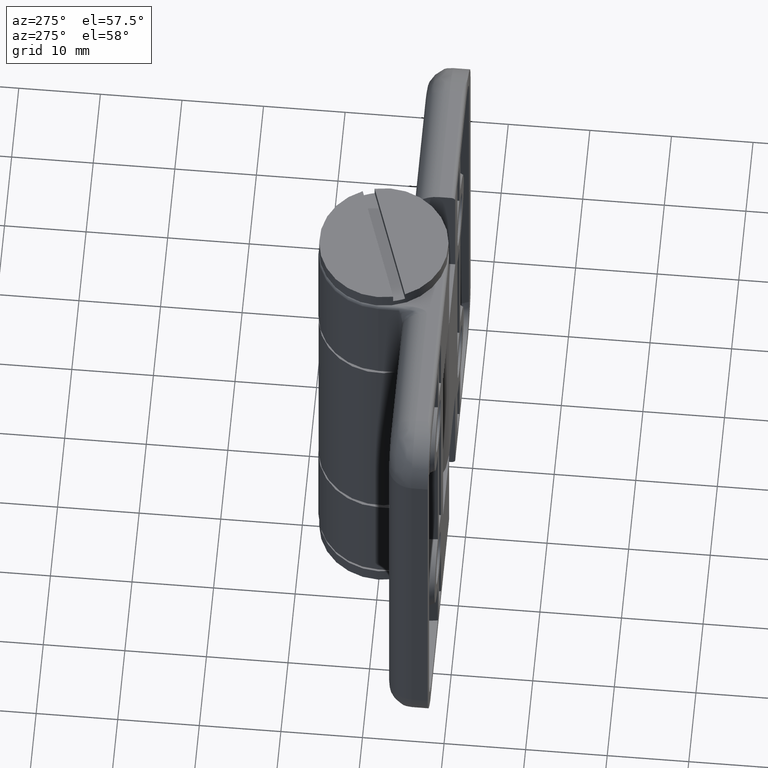
[diagram: clean part render]
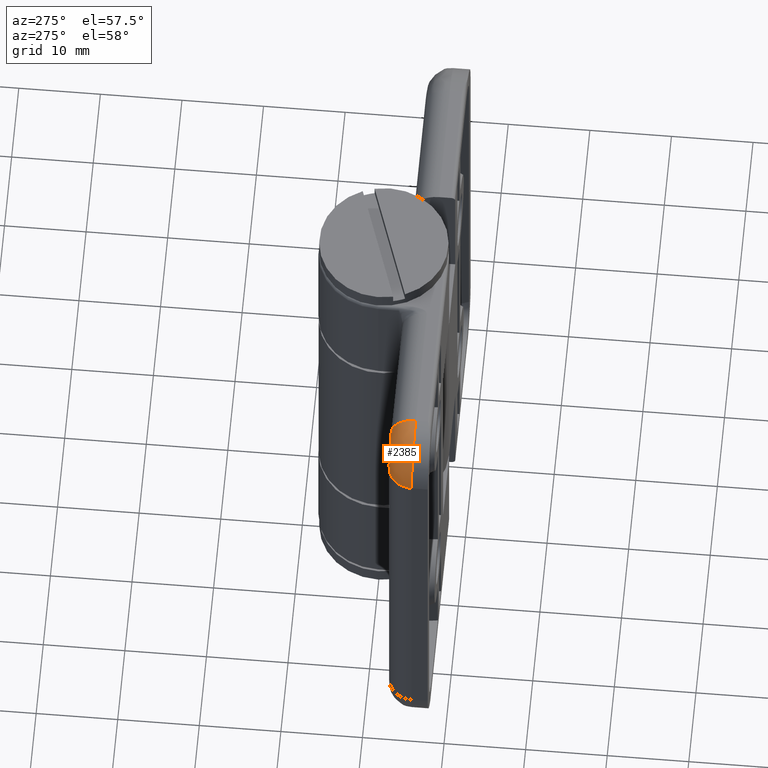
[diagram: same view with one face highlighted and labeled with its STEP entity id]
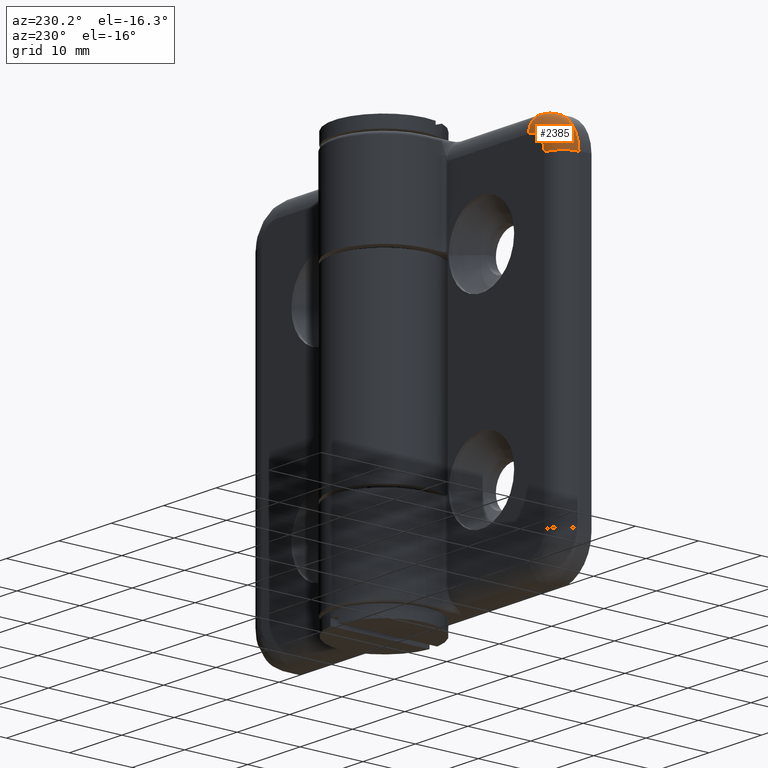
[diagram: same view with one face highlighted and labeled with its STEP entity id]
A machine part, auxiliary view. The second image highlights one B-rep face of the part: STEP entity #2385.
A second angle (auxiliary view) of the same face is appended — the face is thin or edge-on in the first view.
In plain terms, the highlighted face is a freeform B-spline surface patch.
Its self-contained STEP definition (entity closure, byte-faithful):
#69=(
BOUNDED_SURFACE()
B_SPLINE_SURFACE(2,2,((#4323,#4324,#4325),(#4326,#4327,#4328),(#4329,#4330,
#4331)),.UNSPECIFIED.,.F.,.F.,.F.)
B_SPLINE_SURFACE_WITH_KNOTS((3,3),(3,3),(-1.57079632679489,2.01717093318631E-14),
(-3.14159265358979,-1.57079632679489),.UNSPECIFIED.)
GEOMETRIC_REPRESENTATION_ITEM()
RATIONAL_B_SPLINE_SURFACE(((1.,0.707106781186546,1.),(0.707106781186545,
0.499999999999998,0.707106781186545),(1.,0.707106781186546,1.)))
REPRESENTATION_ITEM('')
SURFACE()
);
#352=FACE_OUTER_BOUND('',#552,.T.);
#552=EDGE_LOOP('',(#2065,#2066,#2067,#2068));
#989=CIRCLE('',#2599,3.);
#1007=CIRCLE('',#2642,3.);
#1008=CIRCLE('',#2643,3.);
#1009=CIRCLE('',#2644,6.);
#1152=VERTEX_POINT('',#3845);
#1204=VERTEX_POINT('',#4001);
#1226=VERTEX_POINT('',#4332);
#1227=VERTEX_POINT('',#4334);
#1481=EDGE_CURVE('',#1204,#1152,#989,.T.);
#1520=EDGE_CURVE('',#1204,#1226,#1007,.T.);
#1521=EDGE_CURVE('',#1227,#1226,#1008,.T.);
#1522=EDGE_CURVE('',#1152,#1227,#1009,.F.);
#2065=ORIENTED_EDGE('',*,*,#1520,.T.);
#2066=ORIENTED_EDGE('',*,*,#1521,.F.);
#2067=ORIENTED_EDGE('',*,*,#1522,.F.);
#2068=ORIENTED_EDGE('',*,*,#1481,.F.);
#2385=ADVANCED_FACE('',(#352),#69,.F.);
#2599=AXIS2_PLACEMENT_3D('',#4003,#3173,#3174);
#2642=AXIS2_PLACEMENT_3D('',#4333,#3274,#3275);
#2643=AXIS2_PLACEMENT_3D('',#4335,#3276,#3277);
#2644=AXIS2_PLACEMENT_3D('',#4336,#3278,#3279);
#3173=DIRECTION('center_axis',(1.,0.,0.));
#3174=DIRECTION('ref_axis',(0.,1.,0.));
#3274=DIRECTION('center_axis',(1.76626390281275E-16,-1.,0.));
#3275=DIRECTION('ref_axis',(-0.707106781186547,-1.24893718304391E-16,0.707106781186547));
#3276=DIRECTION('center_axis',(0.,0.,-1.));
#3277=DIRECTION('ref_axis',(-1.,0.,0.));
#3278=DIRECTION('center_axis',(0.,1.,0.));
#3279=DIRECTION('ref_axis',(0.,0.,1.));
#3845=CARTESIAN_POINT('',(-24.,-6.00000000000001,30.));
#4001=CARTESIAN_POINT('',(-24.,-3.00000000000001,27.));
#4003=CARTESIAN_POINT('Origin',(-24.,-6.00000000000001,27.));
#4323=CARTESIAN_POINT('Ctrl Pts',(-24.,-3.00000000000001,27.));
#4324=CARTESIAN_POINT('Ctrl Pts',(-27.,-2.99999999999998,27.));
#4325=CARTESIAN_POINT('Ctrl Pts',(-27.,-3.00000000000002,24.));
#4326=CARTESIAN_POINT('Ctrl Pts',(-24.,-3.,30.));
#4327=CARTESIAN_POINT('Ctrl Pts',(-30.,-2.99999999999994,30.));
#4328=CARTESIAN_POINT('Ctrl Pts',(-30.,-3.00000000000002,24.));
#4329=CARTESIAN_POINT('Ctrl Pts',(-24.,-6.00000000000003,30.));
#4330=CARTESIAN_POINT('Ctrl Pts',(-30.,-5.99999999999997,30.));
#4331=CARTESIAN_POINT('Ctrl Pts',(-30.,-6.00000000000005,24.));
#4332=CARTESIAN_POINT('',(-27.,-3.00000000000001,24.));
#4333=CARTESIAN_POINT('Origin',(-24.,-3.00000000000001,24.));
#4334=CARTESIAN_POINT('',(-30.,-6.00000000000001,24.));
#4335=CARTESIAN_POINT('Origin',(-27.,-6.00000000000001,24.));
#4336=CARTESIAN_POINT('Origin',(-24.,-6.00000000000001,24.));